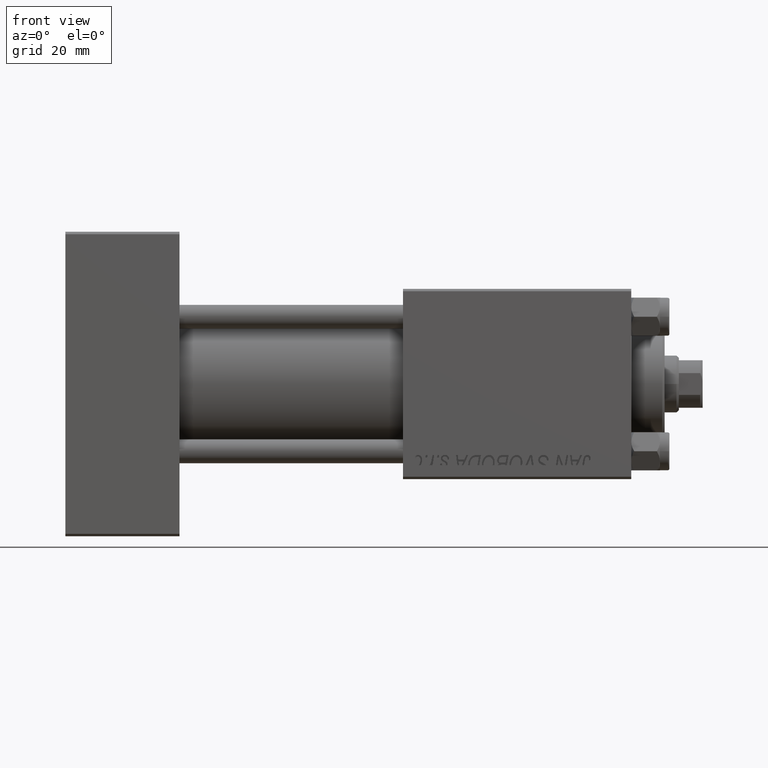
[diagram: clean part render]
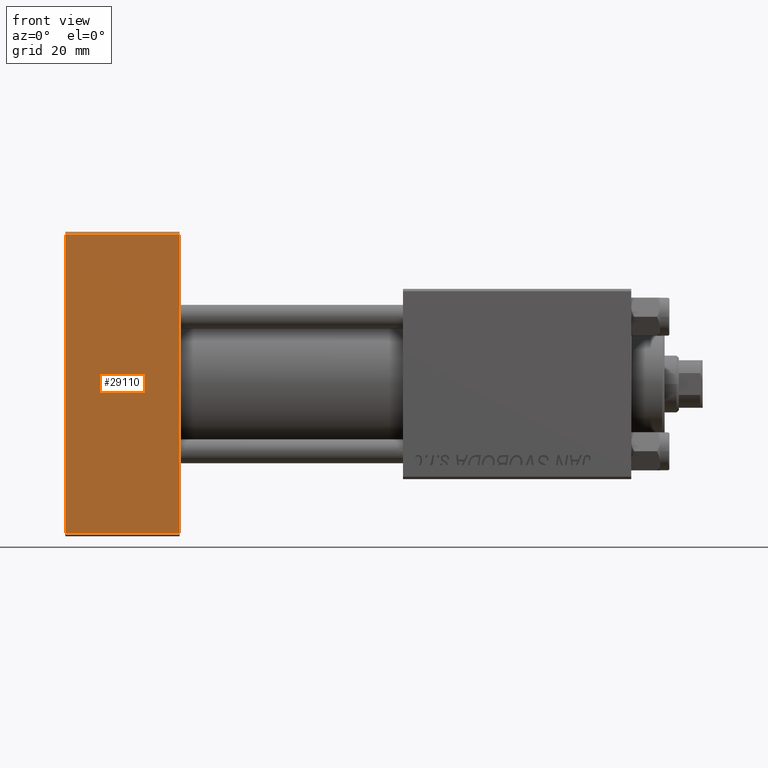
[diagram: same view with one face highlighted and labeled with its STEP entity id]
A machine part, front view. The second image highlights one B-rep face of the part: STEP entity #29110.
In plain terms, the highlighted planar face has unit normal (0, 1, 0).
Its self-contained STEP definition (entity closure, byte-faithful):
#1655 = VECTOR ( 'NONE', #29283, 1000.000000000000000 ) ;
#3094 = CARTESIAN_POINT ( 'NONE',  ( 24.00000000000000000, -20.00000000000000355, 31.50000000000000711 ) ) ;
#3612 = CARTESIAN_POINT ( 'NONE',  ( 0.000000000000000000, -20.00000000000000355, 32.00000000000000000 ) ) ;
#3817 = EDGE_CURVE ( 'NONE', #4196, #36486, #48484, .T. ) ;
#4196 = VERTEX_POINT ( 'NONE', #43088 ) ;
#4540 = VERTEX_POINT ( 'NONE', #3094 ) ;
#5126 = DIRECTION ( 'NONE',  ( -1.000000000000000000, 0.000000000000000000, 0.000000000000000000 ) ) ;
#12167 = DIRECTION ( 'NONE',  ( -0.000000000000000000, 1.000000000000000000, 0.000000000000000000 ) ) ;
#14144 = DIRECTION ( 'NONE',  ( 0.000000000000000000, -0.000000000000000000, 1.000000000000000000 ) ) ;
#14946 = EDGE_LOOP ( 'NONE', ( #44324, #41215, #31908, #42165 ) ) ;
#16011 = AXIS2_PLACEMENT_3D ( 'NONE', #32579, #12167, #14144 ) ;
#17191 = PLANE ( 'NONE',  #16011 ) ;
#17984 = VERTEX_POINT ( 'NONE', #23482 ) ;
#19222 = CARTESIAN_POINT ( 'NONE',  ( 24.00000000000000000, -20.00000000000000355, -31.49999999999997158 ) ) ;
#20866 = DIRECTION ( 'NONE',  ( 0.000000000000000000, 0.000000000000000000, -1.000000000000000000 ) ) ;
#20978 = FACE_OUTER_BOUND ( 'NONE', #14946, .T. ) ;
#23482 = CARTESIAN_POINT ( 'NONE',  ( 0.000000000000000000, -20.00000000000000355, 31.50000000000000711 ) ) ;
#24295 = CARTESIAN_POINT ( 'NONE',  ( 24.00000000000000000, -20.00000000000000355, 31.50000000000000711 ) ) ;
#27314 = DIRECTION ( 'NONE',  ( 0.000000000000000000, 0.000000000000000000, -1.000000000000000000 ) ) ;
#27843 = LINE ( 'NONE', #24295, #40234 ) ;
#28932 = VECTOR ( 'NONE', #20866, 1000.000000000000000 ) ;
#29110 = ADVANCED_FACE ( 'NONE', ( #20978 ), #17191, .F. ) ;
#29283 = DIRECTION ( 'NONE',  ( 1.000000000000000000, 0.000000000000000000, 0.000000000000000000 ) ) ;
#30415 = EDGE_CURVE ( 'NONE', #4540, #36486, #35749, .T. ) ;
#30937 = EDGE_CURVE ( 'NONE', #4540, #17984, #27843, .T. ) ;
#31908 = ORIENTED_EDGE ( 'NONE', *, *, #30415, .F. ) ;
#32579 = CARTESIAN_POINT ( 'NONE',  ( 24.00000000000000000, -20.00000000000000355, 32.00000000000000000 ) ) ;
#33805 = CARTESIAN_POINT ( 'NONE',  ( 24.00000000000000000, -20.00000000000000355, -31.49999999999997158 ) ) ;
#35749 = LINE ( 'NONE', #43839, #28932 ) ;
#36486 = VERTEX_POINT ( 'NONE', #19222 ) ;
#38197 = LINE ( 'NONE', #3612, #48688 ) ;
#40234 = VECTOR ( 'NONE', #5126, 1000.000000000000000 ) ;
#41215 = ORIENTED_EDGE ( 'NONE', *, *, #3817, .T. ) ;
#42165 = ORIENTED_EDGE ( 'NONE', *, *, #30937, .T. ) ;
#43088 = CARTESIAN_POINT ( 'NONE',  ( 0.000000000000000000, -20.00000000000000355, -31.49999999999997158 ) ) ;
#43839 = CARTESIAN_POINT ( 'NONE',  ( 24.00000000000000000, -20.00000000000000355, 32.00000000000000000 ) ) ;
#44324 = ORIENTED_EDGE ( 'NONE', *, *, #48614, .T. ) ;
#48484 = LINE ( 'NONE', #33805, #1655 ) ;
#48614 = EDGE_CURVE ( 'NONE', #17984, #4196, #38197, .T. ) ;
#48688 = VECTOR ( 'NONE', #27314, 1000.000000000000000 ) ;